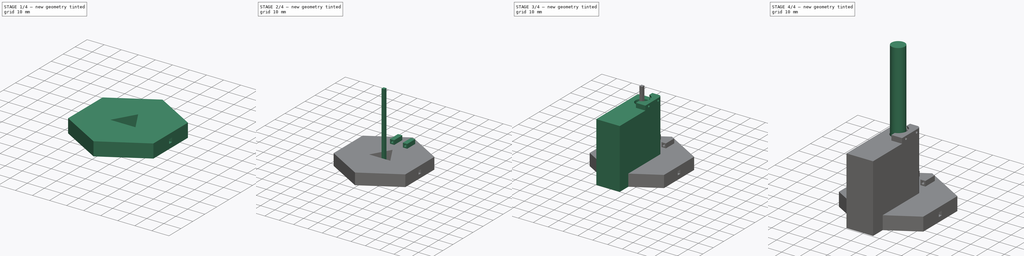
[diagram: build sequence overview — one tinted view per stage of 4, left to right]
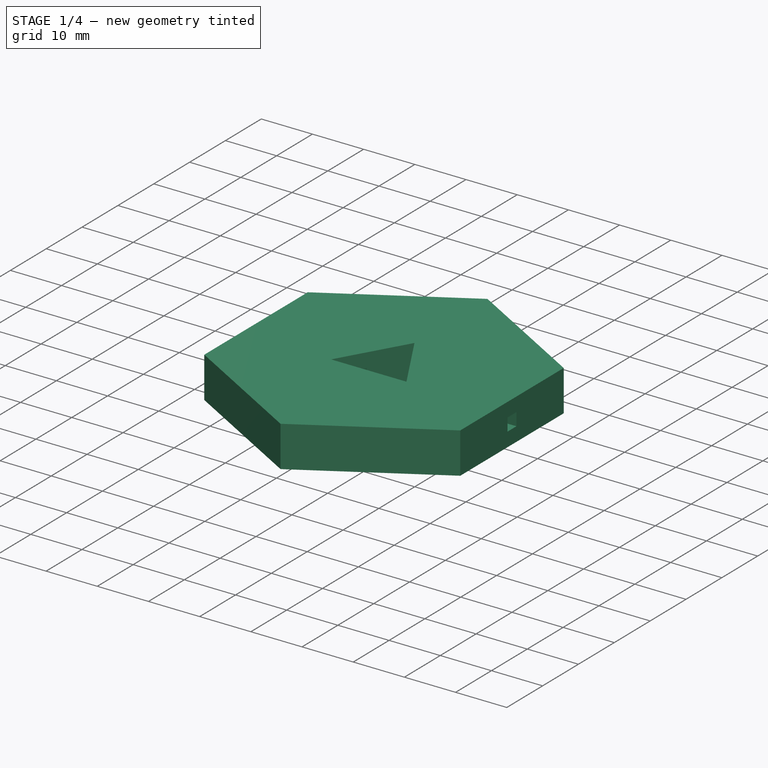
[diagram: stage 1 of 4 — iso view after this stage's code; geometry added in this stage tinted green]
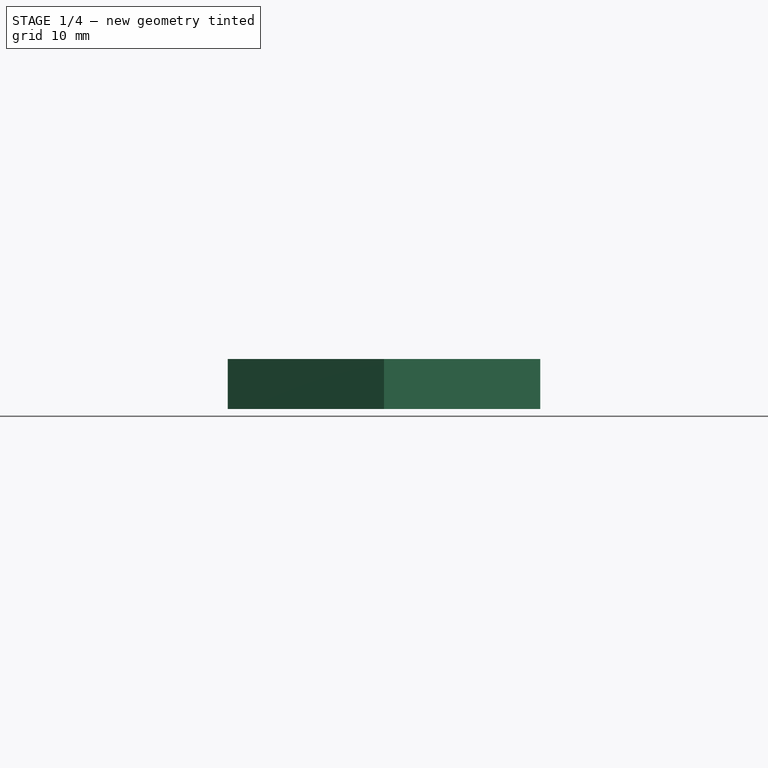
[diagram: stage 1 of 4 — front view after this stage's code; geometry added in this stage tinted green]
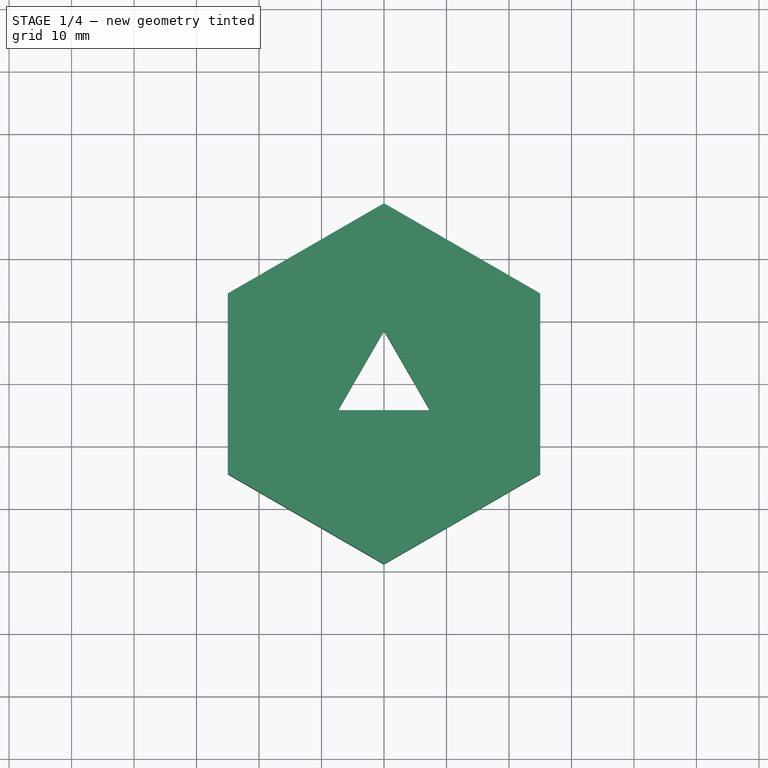
[diagram: stage 1 of 4 — top view after this stage's code; geometry added in this stage tinted green]
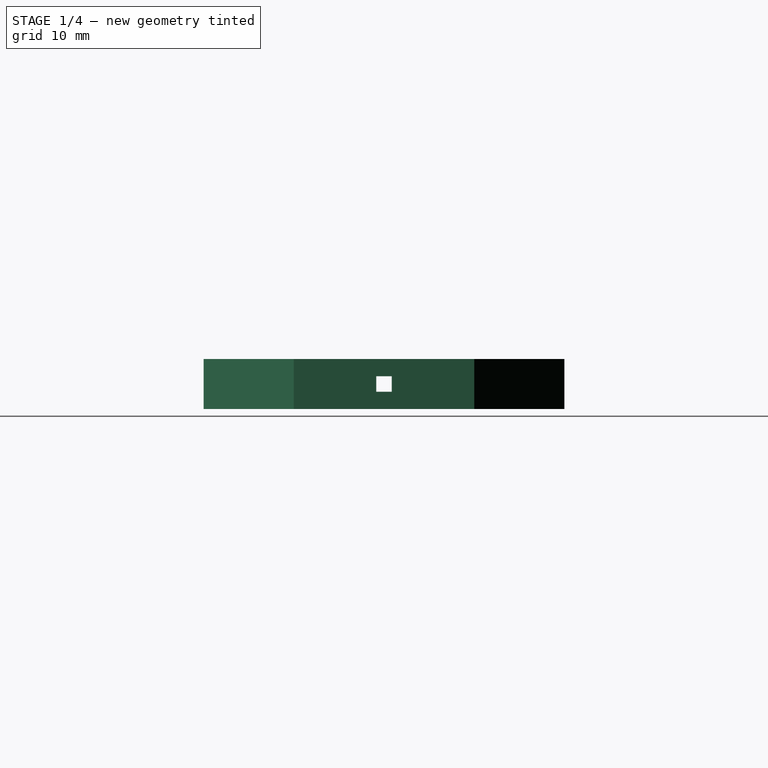
[diagram: stage 1 of 4 — right view after this stage's code; geometry added in this stage tinted green]
FCSTD DOCUMENT  (FreeCAD 0.21R33771 (Git))
Label: SpringWinder
License: All rights reserved
LicenseURL: https://en.wikipedia.org/wiki/All_rights_reserved
objects: PartDesign::CoordinateSystem×15, Sketcher::SketchObject×11, PartDesign::Pad×7, PartDesign::Plane×6, App::Part×5, PartDesign::Pocket×4, PartDesign::Body×4, App::Link×4, App::DocumentObjectGroup×3, Spreadsheet::Sheet×2, PartDesign::Mirrored×2, PartDesign::MultiTransform×2, App::FeaturePython×1
note: 62 computed .brp shape members not serialized (recipe doc carries the construction recipe); baked Part::Feature solids carry a one-line shape summary decoded from their .brp

FEATURE [PartDesign::Body] Body  label="axis_body"
  Group = -> [Sketch,Pad,Local_CS001,DatumPlane,Pocket,Sketch002,Local_CS,Sketch001,Pad001]
  Origin = -> Origin003
  Tip = -> Pad001
FEATURE [Sketcher::SketchObject] Sketch003  label="handle_cylinder_sketch"
  FullyConstrained = true
  MapMode = 5
  Support = -> [XY_Plane004]
  expr: Constraints[18] = <<Specification>>.handle_diameter
  sketch-geometry (7):
    g0: LineSegment StartX=25 StartY=-14.4338 StartZ=0 EndX=25 EndY=14.4338 EndZ=0
    g1: LineSegment StartX=25 StartY=14.4338 StartZ=0 EndX=0 EndY=28.8675 EndZ=0
    g2: LineSegment StartX=0 StartY=28.8675 StartZ=0 EndX=-25 EndY=14.4338 EndZ=0
    g3: LineSegment StartX=-25 StartY=14.4338 StartZ=0 EndX=-25 EndY=-14.4338 EndZ=0
    g4: LineSegment StartX=-25 StartY=-14.4338 StartZ=0 EndX=0 EndY=-28.8675 EndZ=0
    g5: LineSegment StartX=0 StartY=-28.8675 StartZ=0 EndX=25 EndY=-14.4338 EndZ=0
    g6: Circle CenterX=0 CenterY=0 CenterZ=0 NormalX=0 NormalY=0 NormalZ=1 AngleXU=0 Radius=28.8675
  constraints (15):
    c: Coincident(g0,g1)
    c: Coincident(g1,g2)
    c: Coincident(g2,g3)
    c: Coincident(g3,g4)
    c: Coincident(g4,g5)
    c: Coincident(g5,g0)
    c: Equal(g0, g1-g5) x5
    c: PointOnObject(g0,g6)
    c: PointOnObject(g1,g6)
    c: PointOnObject(g2,g6)
    c: PointOnObject(g3,g6)
    c: PointOnObject(g4,g6)
    c: Coincident(g6,g-1)
    c: Symmetric(g3,g0,g-2)
    c: DistanceX(g2,g0) = 50
FEATURE [PartDesign::Pad] Pad002  label="handle_cylinder_pad"
  Direction = (0,0,1)
  Length = 8
  Length2 = 10
  Profile = -> Sketch003
  ReferenceAxis = -> Sketch003 [N_Axis]
  Type = 0
  expr: Length = <<Specification>>.handle_width
FEATURE [PartDesign::CoordinateSystem] Local_CS002  label="handle_pin_hole_cs"
  AttacherType = Attacher::AttachEngine3D
  AttachmentOffset = pos=(25,0,4) rot=(0,0,1;0rad)
  MapMode = 2
  Placement = pos=(25,0,4) rot=(0,0,1;0rad)
  Support = -> [Pad002]
  expr: .AttachmentOffset.Base.x = <<Specification>>.handle_diameter * 0.5
  expr: .AttachmentOffset.Base.z = <<Specification>>.handle_width * 0.5
FEATURE [PartDesign::Plane] DatumPlane001  label="handle_pin_hole_plane"
  Length = 60
  MapMode = 4
  Placement = pos=(25,0,4) rot=(0.57735,0.57735,0.57735;2.0944rad)
  ResizeMode = 0
  Support = -> [Local_CS002]
  Width = 60
FEATURE [Sketcher::SketchObject] Sketch004  label="handle_pin_hole_sketch"
  FullyConstrained = true
  MapMode = 5
  Placement = pos=(25,0,4) rot=(0.57735,0.57735,0.57735;2.0944rad)
  Support = -> [DatumPlane001]
  expr: Constraints[11] = <<Specification>>.fixator_hole_diameter
  sketch-geometry (5):
    g0: LineSegment StartX=-1.25 StartY=-1.25 StartZ=0 EndX=-1.25 EndY=1.25 EndZ=0
    g1: LineSegment StartX=-1.25 StartY=1.25 StartZ=0 EndX=1.25 EndY=1.25 EndZ=0
    g2: LineSegment StartX=1.25 StartY=1.25 StartZ=0 EndX=1.25 EndY=-1.25 EndZ=0
    g3: LineSegment StartX=1.25 StartY=-1.25 StartZ=0 EndX=-1.25 EndY=-1.25 EndZ=0
    g4: GeomPoint X=0 Y=0 Z=0
  constraints (12):
    c: Coincident(g0,g1)
    c: Coincident(g1,g2)
    c: Coincident(g2,g3)
    c: Coincident(g3,g0)
    c: Horizontal(g1)
    c: Horizontal(g3)
    c: Vertical(g0)
    c: Vertical(g2)
    c: Symmetric(g1,g0,g4)
    c: Coincident(g4,g-1)
    c: Equal(g1,g2)
    c: DistanceY(g2,g1) = 2.5
FEATURE [PartDesign::Pocket] Pocket001  label="handle_pin_hole_pocket"
  BaseFeature = -> Pad002
  Direction = (-1,0,0)
  Length = 50
  Length2 = 5
  Profile = -> Sketch004
  ReferenceAxis = -> Sketch004 [N_Axis]
  Type = 1
  expr: Length = <<Specification>>.handle_diameter
FEATURE [PartDesign::Body] Body002  label="fixator_pin_body"
  Group = -> [Sketch005,Pad003]
  Origin = -> Origin006
  Tip = -> Pad003
FEATURE [PartDesign::CoordinateSystem] FlatAxisLCS
  AttacherType = Attacher::AttachEngine3D
  MapMode = 2
  Support = -> [Body]
FEATURE [App::Part] Part001  label="FlatAxis"
  Group = -> [Body,FlatAxisLCS]
  Origin = -> Origin001
FEATURE [PartDesign::CoordinateSystem] FixatorPinLCS
  AttacherType = Attacher::AttachEngine3D
  MapMode = 2
  Support = -> [Body002]
FEATURE [App::Part] Part003  label="FixatorPin"
  Group = -> [Body002,FixatorPinLCS]
  Origin = -> Origin005
FEATURE [PartDesign::CoordinateSystem] LCS_Origin
  AttacherType = Attacher::AttachEngine3D
  MapMode = 2
  Support = -> [X_Axis007]
FEATURE [App::DocumentObjectGroup] Constraints
FEATURE [App::FeaturePython] Variables  # WARN: FeaturePython — macro-defined, semantics opaque (R4)
  Type = App::PropertyContainer
FEATURE [App::DocumentObjectGroup] Configurations
FEATURE [App::Link] FlatAxis  label="FlatAxis001"
  AttachedBy = #FlatAxisLCS
  AttachedTo = Parent Assembly#LCS_Origin
  LinkedObject = -> Part001
  SolverId = Asm4EE
  expr: Placement = LCS_Origin.Placement * AttachmentOffset * FlatAxisLCS.Placement ^ -1
FEATURE [App::Link] Handle  label="Handle001"
  AttachedBy = #HandleLCS
  AttachedTo = Parent Assembly#LCS_Origin
  LinkedObject = -> Part
  SolverId = Asm4EE
  expr: Placement = LCS_Origin.Placement * AttachmentOffset * HandleLCS.Placement ^ -1
FEATURE [Sketcher::SketchObject] Sketch006  label="handle_axis_hole_sketch"
  FullyConstrained = true
  MapMode = 5
  Support = -> [XY_Plane004]
  expr: Constraints[9] = <<Specification>>.inner_radius + <<Parameters>>.big_clearence
  sketch-geometry (4):
    g0: LineSegment StartX=7.36122 StartY=-4.25 StartZ=0 EndX=-9e-16 EndY=8.5 EndZ=0
    g1: LineSegment StartX=-9e-16 StartY=8.5 StartZ=0 EndX=-7.36122 EndY=-4.25 EndZ=0
    g2: LineSegment StartX=-7.36122 StartY=-4.25 StartZ=0 EndX=7.36122 EndY=-4.25 EndZ=0
    g3: Circle CenterX=0 CenterY=0 CenterZ=0 NormalX=0 NormalY=0 NormalZ=1 AngleXU=0 Radius=8.5
  constraints (10):
    c: Coincident(g0,g1)
    c: Coincident(g1,g2)
    c: Coincident(g2,g0)
    c: Equal(g0,g1)
    c: Equal(g0,g2)
    c: PointOnObject(g0,g3)
    c: PointOnObject(g1,g3)
    c: Coincident(g3,g-1)
    c: Symmetric(g1,g0,g-2)
    c: DistanceY(g0,g3) = 4.25
FEATURE [PartDesign::Pocket] Pocket002  label="handle_axis_hole_pocket"
  BaseFeature = -> Pocket001
  Direction = (0,0,-1)
  Length = 5
  Length2 = 5
  Profile = -> Sketch006
  ReferenceAxis = -> Sketch006 [N_Axis]
  Reversed = true
  Type = 1
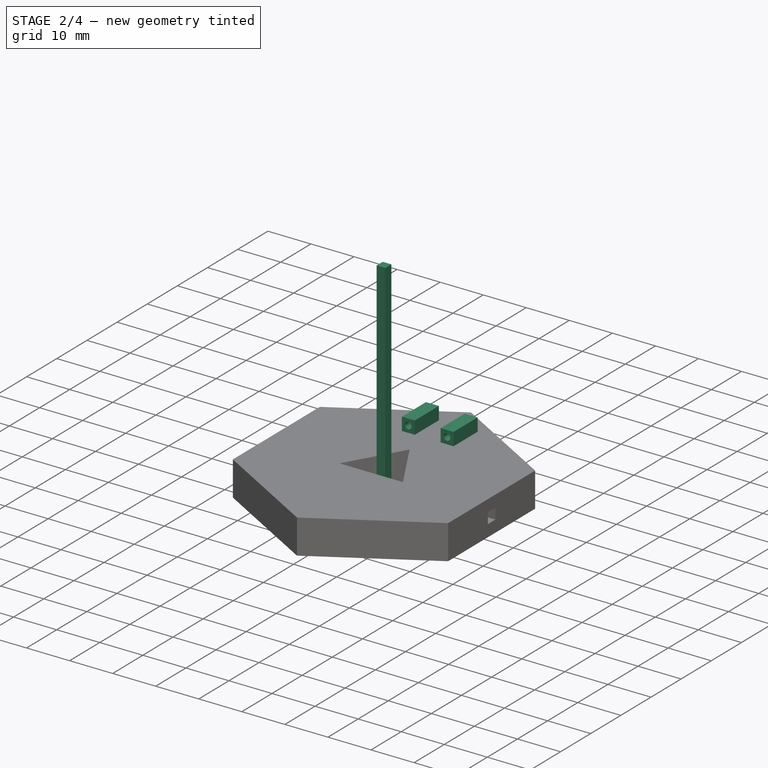
[diagram: stage 2 of 4 — iso view after this stage's code; geometry added in this stage tinted green]
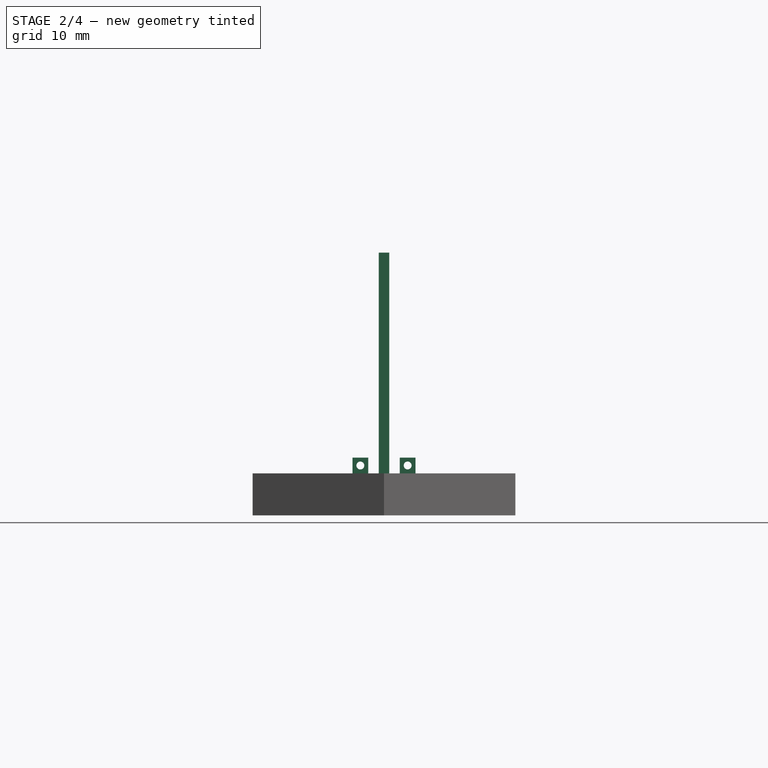
[diagram: stage 2 of 4 — front view after this stage's code; geometry added in this stage tinted green]
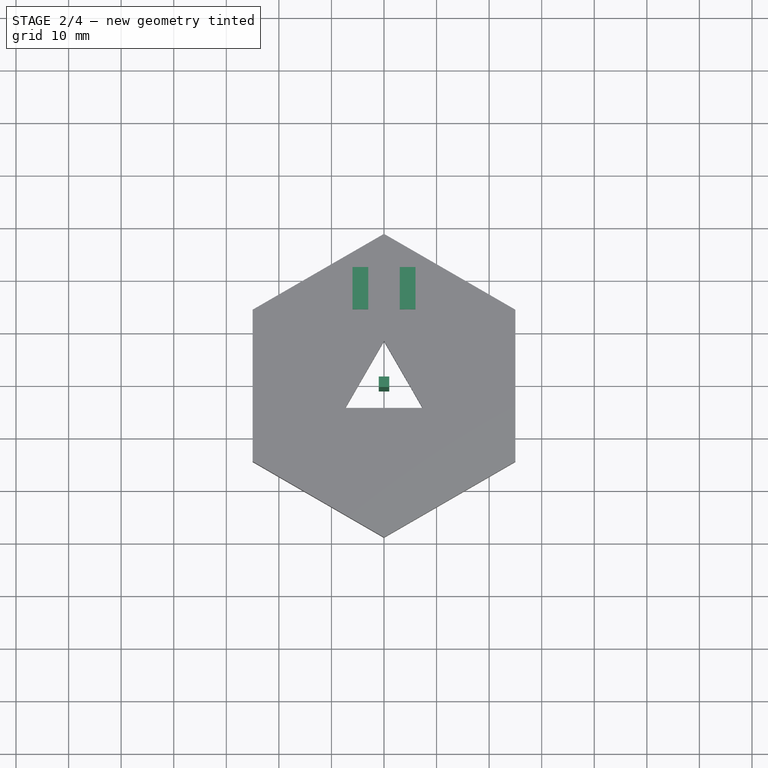
[diagram: stage 2 of 4 — top view after this stage's code; geometry added in this stage tinted green]
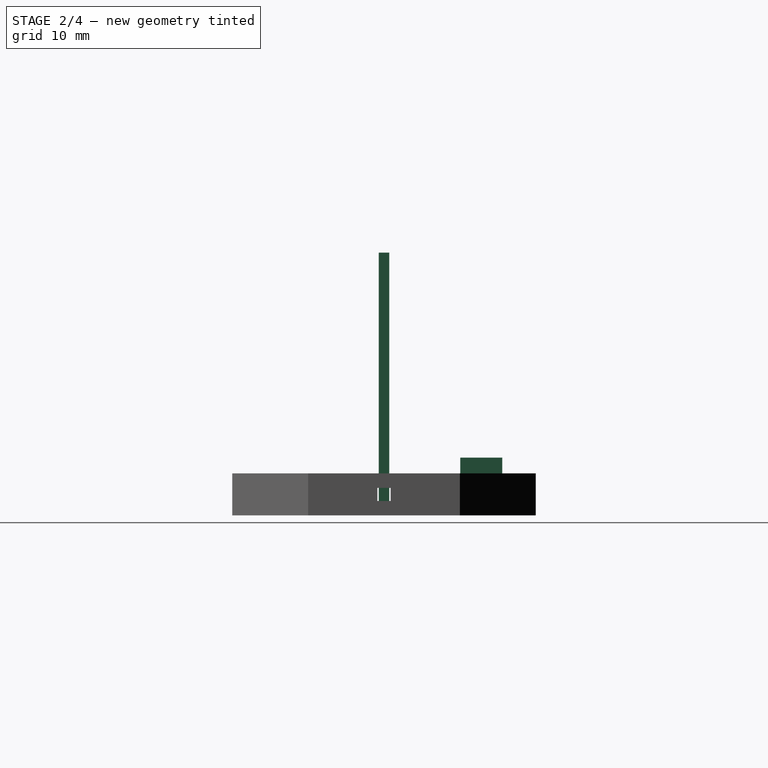
[diagram: stage 2 of 4 — right view after this stage's code; geometry added in this stage tinted green]
FEATURE [Sketcher::SketchObject] Sketch005  label="fixator_pin_sketch"
  FullyConstrained = true
  MapMode = 5
  Support = -> [XY_Plane006]
  expr: Constraints[10] = <<Specification>>.fixator_pin_diameter
  sketch-geometry (5):
    g0: LineSegment StartX=-1 StartY=1 StartZ=0 EndX=-1 EndY=-1 EndZ=0
    g1: LineSegment StartX=-1 StartY=-1 StartZ=0 EndX=1 EndY=-1 EndZ=0
    g2: LineSegment StartX=1 StartY=-1 StartZ=0 EndX=1 EndY=1 EndZ=0
    g3: LineSegment StartX=1 StartY=1 StartZ=0 EndX=-1 EndY=1 EndZ=0
    g4: GeomPoint X=0 Y=0 Z=0
  constraints (12):
    c: Coincident(g0,g1)
    c: Coincident(g1,g2)
    c: Coincident(g2,g3)
    c: Coincident(g3,g0)
    c: Horizontal(g1)
    c: Horizontal(g3)
    c: Vertical(g0)
    c: Vertical(g2)
    c: Symmetric(g1,g0,g4)
    c: Equal(g3,g2)
    c: DistanceY(g1,g2) = 2
    c: Coincident(g4,g-1)
FEATURE [PartDesign::Pad] Pad003  label="fixator_pin_pad"
  Direction = (0,0,1)
  Length = 50
  Length2 = 10
  Profile = -> Sketch005
  ReferenceAxis = -> Sketch005 [N_Axis]
  Type = 0
  expr: Length = <<Specification>>.handle_diameter
FEATURE [PartDesign::CoordinateSystem] Local_CS003  label="handle_wire_holder_center_cs"
  AttacherType = Attacher::AttachEngine3D
  AttachmentOffset = pos=(0,14.5,8) rot=(0,0,1;0rad)
  MapMode = 2
  Placement = pos=(0,14.5,8) rot=(0,0,1;0rad)
  Support = -> [Pocket002]
  expr: .AttachmentOffset.Base.y = <<Specification>>.handle_wire_holder_y_offset
  expr: .AttachmentOffset.Base.z = <<Specification>>.handle_width
FEATURE [PartDesign::Plane] DatumPlane002  label="handle_wire_holder_mirror_plane"
  Length = 60
  MapMode = 4
  Placement = pos=(0,14.5,8) rot=(0.57735,0.57735,0.57735;2.0944rad)
  ResizeMode = 0
  Support = -> [Local_CS003]
  Width = 60
FEATURE [PartDesign::CoordinateSystem] Local_CS004  label="handle_wire_holder_cs"
  AttacherType = Attacher::AttachEngine3D
  AttachmentOffset = pos=(0,1.5,4.5) rot=(0,0,1;0rad)
  MapMode = 5
  Placement = pos=(4.5,14.5,9.5) rot=(0.57735,0.57735,0.57735;2.0944rad)
  Support = -> [DatumPlane002]
  expr: .AttachmentOffset.Base.y = <<Specification>>.handle_wire_holder_width * 0.5
  expr: .AttachmentOffset.Base.z = <<Specification>>.handle_wire_holder_x_offset
FEATURE [PartDesign::Plane] DatumPlane003  label="handle_wire_holder_plane"
  Length = 60
  MapMode = 4
  Placement = pos=(4.5,14.5,9.5) rot=(0.57735,0.57735,0.57735;4.18879rad)
  ResizeMode = 0
  Support = -> [Local_CS004]
  Width = 60
FEATURE [Sketcher::SketchObject] Sketch007  label="handle_wire_holder_sketch"
  FullyConstrained = true
  MapMode = 5
  Placement = pos=(4.5,14.5,9.5) rot=(0.57735,0.57735,0.57735;4.18879rad)
  Support = -> [DatumPlane003]
  expr: Constraints[10] = <<Specification>>.handle_wire_holder_width
  expr: Constraints[12] = <<Specification>>.handle_wire_holder_hole_diameter
  sketch-geometry (6):
    g0: LineSegment StartX=-1.5 StartY=-1.5 StartZ=0 EndX=-1.5 EndY=1.5 EndZ=0
    g1: LineSegment StartX=-1.5 StartY=1.5 StartZ=0 EndX=1.5 EndY=1.5 EndZ=0
    g2: LineSegment StartX=1.5 StartY=1.5 StartZ=0 EndX=1.5 EndY=-1.5 EndZ=0
    g3: LineSegment StartX=1.5 StartY=-1.5 StartZ=0 EndX=-1.5 EndY=-1.5 EndZ=0
    g4: GeomPoint X=0 Y=0 Z=0
    g5: Circle CenterX=0 CenterY=0 CenterZ=0 NormalX=0 NormalY=0 NormalZ=1 AngleXU=0 Radius=0.75
  constraints (14):
    c: Coincident(g0,g1)
    c: Coincident(g1,g2)
    c: Coincident(g2,g3)
    c: Coincident(g3,g0)
    c: Horizontal(g1)
    c: Horizontal(g3)
    c: Vertical(g0)
    c: Vertical(g2)
    c: Symmetric(g1,g0,g4)
    c: Coincident(g4,g-1)
    c: DistanceY(g2,g1) = 3
    c: Coincident(g5,g4)
    c: Diameter(g5) = 1.5
    c: Equal(g1,g2)
FEATURE [PartDesign::Pad] Pad004  label="handle_wire_holder_pad"
  BaseFeature = -> Pocket002
  Direction = (0,1,0)
  Length = 8
  Length2 = 10
  Profile = -> Sketch007
  ReferenceAxis = -> Sketch007 [N_Axis]
  Type = 0
  expr: Length = <<Specification>>.handle_wire_holder_length
FEATURE [PartDesign::Mirrored] Mirrored
  MirrorPlane = -> DatumPlane002
FEATURE [PartDesign::MultiTransform] MultiTransform  label="handle_wire_holder_mirror"
  BaseFeature = -> Pad004
  Originals = -> [Pad004]
  Transformations = -> [Mirrored]
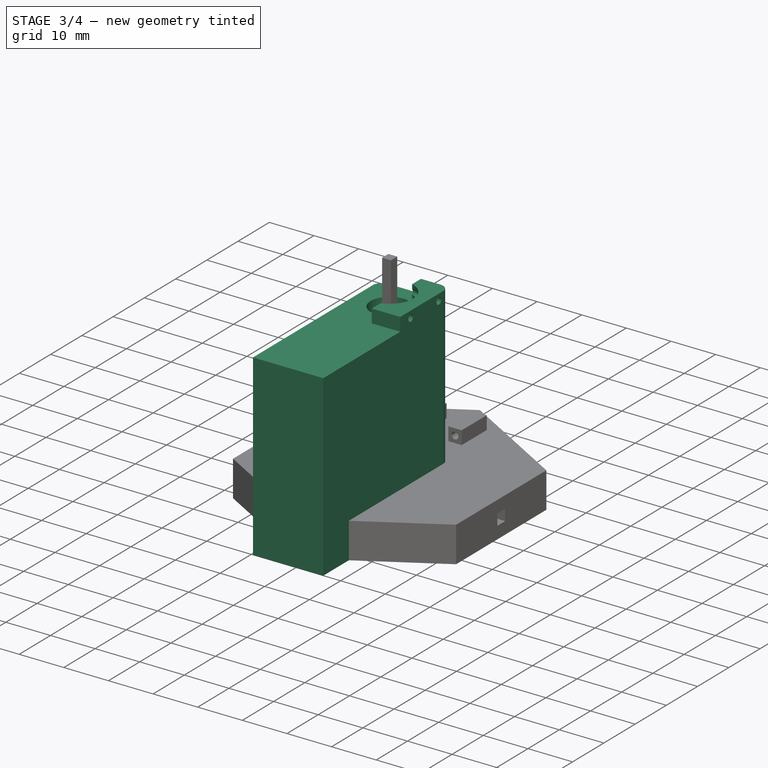
[diagram: stage 3 of 4 — iso view after this stage's code; geometry added in this stage tinted green]
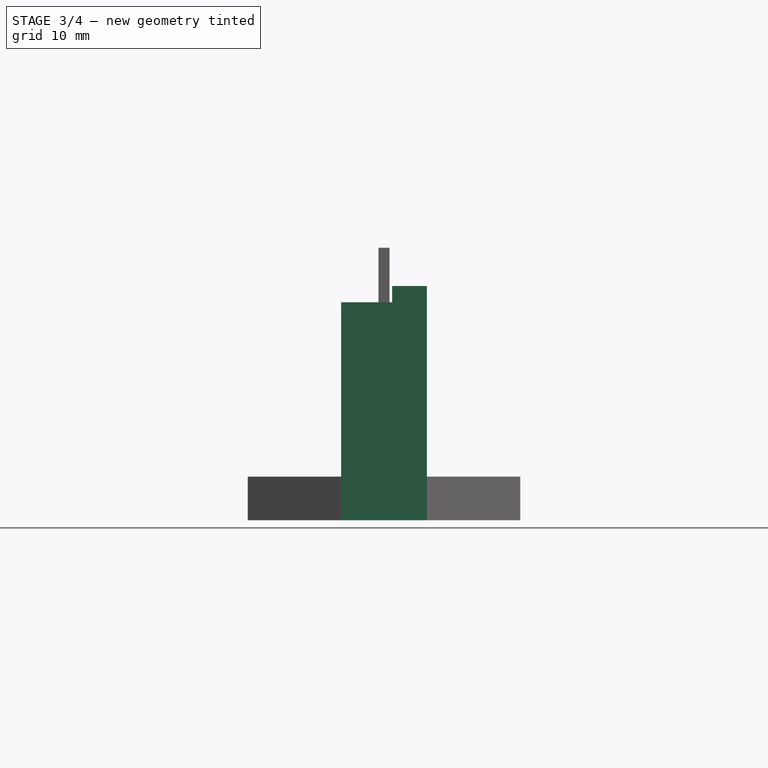
[diagram: stage 3 of 4 — front view after this stage's code; geometry added in this stage tinted green]
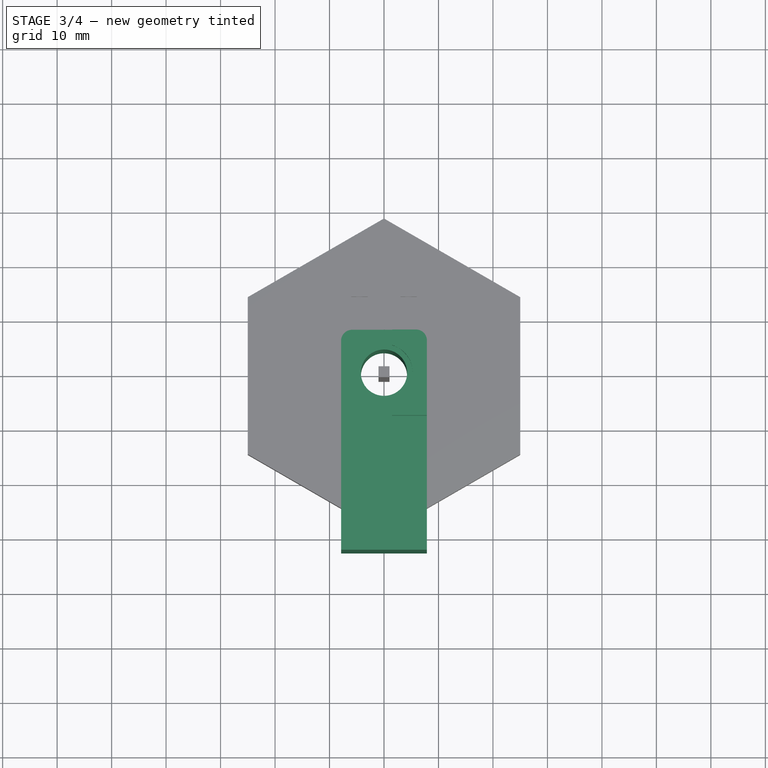
[diagram: stage 3 of 4 — top view after this stage's code; geometry added in this stage tinted green]
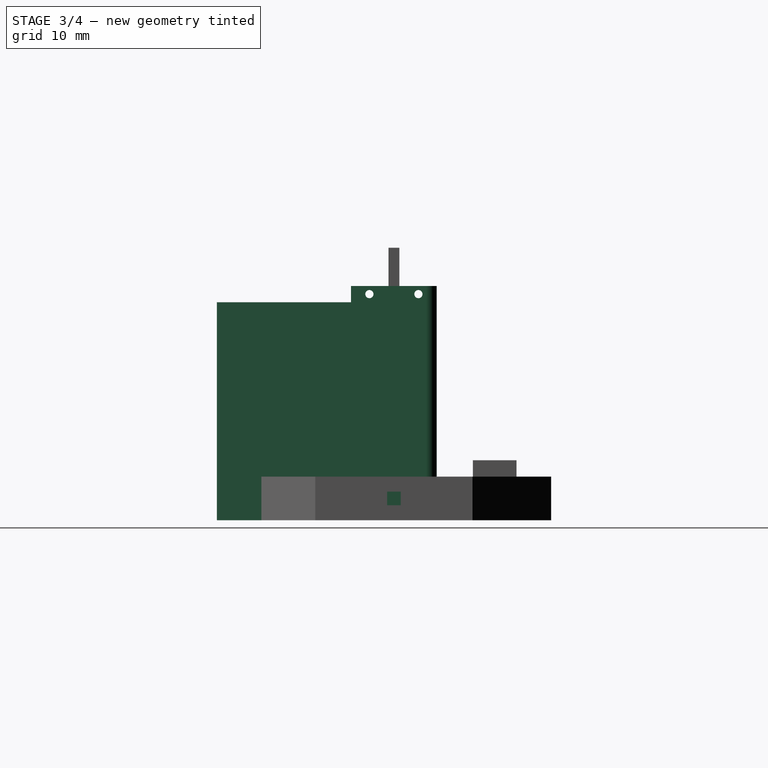
[diagram: stage 3 of 4 — right view after this stage's code; geometry added in this stage tinted green]
FEATURE [PartDesign::Body] Body001  label="handle_body"
  Group = -> [Sketch003,Pad002,Local_CS002,DatumPlane001,Sketch004,Pocket001,Sketch006,Pocket002,Local_CS003,DatumPlane002,Local_CS004,DatumPlane003,Sketch007,Pad004,MultiTransform,Mirrored]
  Origin = -> Origin004
  Tip = -> MultiTransform
FEATURE [PartDesign::CoordinateSystem] HandleLCS
  AttacherType = Attacher::AttachEngine3D
  MapMode = 2
  Support = -> [Body001]
FEATURE [Sketcher::SketchObject] Sketch008  label="flat_stator_tube_sketch"
  FullyConstrained = true
  MapMode = 5
  Support = -> [XY_Plane008]
  expr: Constraints[0] = <<Specification>>.stator_hole_diameter
  expr: Constraints[19] = <<Specification>>.stator_outside_diameter
  expr: Constraints[20] = <<Specification>>.stator_outside_diameter * 0.5
  expr: Constraints[21] = <<Specification>>.stator_corner_radius
  expr: Constraints[8] = <<Specification>>.stator_height
  sketch-geometry (10):
    g0: Circle CenterX=0 CenterY=0 CenterZ=0 NormalX=0 NormalY=0 NormalZ=1 AngleXU=0 Radius=4.25
    g1: LineSegment StartX=7.875 StartY=0 StartZ=0 EndX=7.875 EndY=-32.5 EndZ=0
    g2: LineSegment StartX=7.875 StartY=-32.5 StartZ=0 EndX=-7.875 EndY=-32.5 EndZ=0
    g3: LineSegment StartX=-7.875 StartY=-32.5 StartZ=0 EndX=-7.875 EndY=0 EndZ=0
    g4: ArcOfCircle CenterX=-5.875 CenterY=5.875 CenterZ=0 NormalX=0 NormalY=0 NormalZ=1 AngleXU=0 Radius=2 StartAngle=1.5708 EndAngle=3.14159
    g5: LineSegment StartX=-5.875 StartY=7.875 StartZ=0 EndX=5.875 EndY=7.875 EndZ=0
    g6: ArcOfCircle CenterX=5.875 CenterY=5.875 CenterZ=0 NormalX=0 NormalY=0 NormalZ=1 AngleXU=0 Radius=2 StartAngle=0 EndAngle=1.5708
    g7: LineSegment StartX=7.875 StartY=5.875 StartZ=0 EndX=7.875 EndY=0 EndZ=0
    g8: LineSegment StartX=-7.875 StartY=0 StartZ=0 EndX=-7.875 EndY=5.875 EndZ=0
    g9: GeomPoint X=-7.875 Y=7.875 Z=0
  constraints (25):
    c: Diameter(g0) = 8.5
    c: Coincident(g0,g-1)
    c: PointOnObject(g1,g-1)
    c: Coincident(g1,g2)
    c: Coincident(g2,g3)
    c: Horizontal(g2)
    c: Vertical(g1)
    c: Vertical(g3)
    c: DistanceY(g1,g0) = 32.5
    c: Tangent(g4,g5) = 1.5708
    c: Tangent(g5,g6) = 1.5708
    c: Tangent(g6,g7) = 1.5708
    c: Tangent(g8,g4) = 1.5708
    c: Horizontal(g5)
    c: Vertical(g7)
    c: Vertical(g8)
    c: Equal(g4,g6)
    c: PointOnObject(g9,g5)
    c: PointOnObject(g9,g8)
    c: DistanceX(g4,g6) = 15.75
    c: DistanceY(g8,g4) = 7.875
    c: Radius(g6) = 2
    c: Coincident(g8,g3)
    c: Coincident(g7,g1)
    c: Symmetric(g3,g1,g0)
FEATURE [PartDesign::Pad] Pad005  label="flat_stator_tube_pad"
  Direction = (0,0,1)
  Length = 40
  Length2 = 10
  Profile = -> Sketch008
  ReferenceAxis = -> Sketch008 [N_Axis]
  Type = 0
  expr: Length = <<Specification>>.stator_length
FEATURE [PartDesign::CoordinateSystem] Local_CS005  label="flat_stator_wire_holder_shield_cs"
  AttacherType = Attacher::AttachEngine3D
  AttachmentOffset = pos=(0,0,40) rot=(0,0,1;0rad)
  MapMode = 2
  Placement = pos=(0,0,40) rot=(0,0,1;0rad)
  Support = -> [Pad005]
  expr: .AttachmentOffset.Base.z = <<Specification>>.stator_length
FEATURE [Sketcher::SketchObject] Sketch009  label="flat_stator_wire_holder_shield_sketch"
  FullyConstrained = true
  MapMode = 5
  Placement = pos=(0,0,40) rot=(0,0,1;0rad)
  Support = -> [Local_CS005]
  expr: Constraints[15] = <<Specification>>.stator_wire_holder_hole_diameter
  expr: Constraints[18] = <<Specification>>.stator_outside_diameter
  expr: Constraints[19] = <<Specification>>.stator_outside_diameter * 0.5
  expr: Constraints[20] = <<Specification>>.stator_corner_radius
  expr: Constraints[2] = <<Specification>>.stator_wire_holder_inside_diameter
  sketch-geometry (8):
    g0: ArcOfCircle CenterX=0 CenterY=0 CenterZ=0 NormalX=0 NormalY=0 NormalZ=1 AngleXU=0 Radius=5.25 StartAngle=5.00214 EndAngle=7.56423
    g1: LineSegment StartX=1.5 StartY=5.03115 StartZ=0 EndX=1.5 EndY=7.875 EndZ=0
    g2: LineSegment StartX=1.5 StartY=-5.03115 StartZ=0 EndX=1.5 EndY=-7.875 EndZ=0
    g3: GeomPoint X=5.25 Y=0 Z=0
    g4: LineSegment StartX=1.5 StartY=7.875 StartZ=0 EndX=5.875 EndY=7.875 EndZ=0
    g5: LineSegment StartX=7.875 StartY=5.875 StartZ=0 EndX=7.875 EndY=-7.875 EndZ=0
    g6: LineSegment StartX=7.875 StartY=-7.875 StartZ=0 EndX=1.5 EndY=-7.875 EndZ=0
    g7: ArcOfCircle CenterX=5.875 CenterY=5.875 CenterZ=0 NormalX=0 NormalY=0 NormalZ=1 AngleXU=0 Radius=2 StartAngle=0 EndAngle=1.5708
  constraints (21):
    c: Coincident(g1,g0)
    c: Coincident(g2,g0)
    c: Diameter(g0) = 10.5
    c: PointOnObject(g3,g0)
    c: PointOnObject(g3,g-1)
    c: Vertical(g2)
    c: Vertical(g1)
    c: Horizontal(g4)
    c: Horizontal(g6)
    c: Vertical(g5)
    c: Coincident(g6,g5)
    c: Coincident(g6,g2)
    c: Coincident(g4,g1)
    c: Coincident(g0,g-1)
    c: Symmetric(g1,g2,g-1)
    c: DistanceX(g0,g0) = 1.5
    c: Tangent(g4,g7) = 1.5708
    c: Tangent(g5,g7) = 1.5708
    c: DistanceY(g5,g4) = 15.75
    c: DistanceX(g0,g5) = 7.875
    c: Radius(g7) = 2
FEATURE [PartDesign::Pad] Pad006  label="flat_stator_wire_holder_shield_pad"
  BaseFeature = -> Pad005
  Direction = (0,0,1)
  Length = 3
  Length2 = 10
  Profile = -> Sketch009
  ReferenceAxis = -> Sketch009 [N_Axis]
  Type = 0
  expr: Length = <<Specification>>.stator_wire_holder_pin_width
FEATURE [PartDesign::CoordinateSystem] Local_CS006  label="flat_stator_wire_holder_pins_center_cs"
  AttacherType = Attacher::AttachEngine3D
  AttachmentOffset = pos=(0,0,1.5) rot=(0,0,1;0rad)
  MapMode = 2
  Placement = pos=(0,0,41.5) rot=(0,0,1;0rad)
  Support = -> [Local_CS005]
  expr: .AttachmentOffset.Base.z = <<Specification>>.stator_wire_holder_pin_width * 0.5
FEATURE [PartDesign::Plane] DatumPlane004  label="flat_stator_wire_holder_pins_mirror_plane"
  Length = 61.5326
  MapMode = 3
  Placement = pos=(0,0,41.5) rot=(1,0,0;1.5708rad)
  ResizeMode = 0
  Support = -> [Local_CS006]
  Width = 78.0326
FEATURE [PartDesign::CoordinateSystem] Local_CS007  label="flat_stator_wire_holder_pins_pos_cs"
  AttacherType = Attacher::AttachEngine3D
  AttachmentOffset = pos=(0,0,4.5) rot=(0,0,1;0rad)
  MapMode = 5
  Placement = pos=(0,-4.5,41.5) rot=(1,0,0;1.5708rad)
  Support = -> [DatumPlane004]
  expr: .AttachmentOffset.Base.z = <<Specification>>.stator_wire_holder_holes_distance * 0.5
FEATURE [PartDesign::Plane] DatumPlane005  label="flat_stator_wire_holder_pins_pos_plane"
  Length = 78.0326
  MapMode = 4
  Placement = pos=(0,-4.5,41.5) rot=(0.707107,0,0.707107;3.14159rad)
  ResizeMode = 0
  Support = -> [Local_CS007]
  Width = 61.5326
FEATURE [Sketcher::SketchObject] Sketch010  label="flat_stator_wire_holder_pins_hole_sketch"
  FullyConstrained = true
  MapMode = 5
  Placement = pos=(0,-4.5,41.5) rot=(0.707107,0,0.707107;3.14159rad)
  Support = -> [DatumPlane005]
  expr: Constraints[1] = <<Specification>>.handle_wire_holder_hole_diameter
  sketch-geometry (1):
    g0: Circle CenterX=0 CenterY=0 CenterZ=0 NormalX=0 NormalY=0 NormalZ=1 AngleXU=0 Radius=0.75
  constraints (2):
    c: Coincident(g0,g-1)
    c: Diameter(g0) = 1.5
FEATURE [PartDesign::Pocket] Pocket003  label="flat_stator_wire_holder_pins_hole_pocket"
  BaseFeature = -> Pad006
  Direction = (-1,0,2e-16)
  Length = 5
  Length2 = 5
  Profile = -> Sketch010
  ReferenceAxis = -> Sketch010 [N_Axis]
  Reversed = true
  Type = 1
FEATURE [PartDesign::Mirrored] Mirrored001
  MirrorPlane = -> DatumPlane004
FEATURE [PartDesign::MultiTransform] MultiTransform001  label="flat_stator_wire_holder_pins_mirror"
  BaseFeature = -> Pocket003
  Originals = -> [Pocket003]
  Transformations = -> [Mirrored001]
FEATURE [PartDesign::Body] Body003  label="flat_stator_body"
  Group = -> [Sketch008,Pad005,Local_CS005,Sketch009,Pad006,Local_CS006,DatumPlane004,Local_CS007,DatumPlane005,Sketch010,Pocket003,MultiTransform001,Mirrored001]
  Origin = -> Origin008
  Tip = -> MultiTransform001
FEATURE [PartDesign::CoordinateSystem] FlatStatorLCS
  AttacherType = Attacher::AttachEngine3D
  AttachmentOffset = pos=(0,0,43) rot=(0,0,1;0rad)
  MapMode = 2
  Placement = pos=(0,0,43) rot=(0,0,1;0rad)
  Support = -> [Body003]
  expr: .AttachmentOffset.Base.z = <<Specification>>.stator_length + <<Specification>>.stator_wire_holder_pin_width
FEATURE [App::Part] Part002  label="FlatStator"
  Group = -> [Body003,FlatStatorLCS]
  Origin = -> Origin002
FEATURE [PartDesign::CoordinateSystem] FlatAssemblyStatorLCS
  AttacherType = Attacher::AttachEngine3D
  AttachmentOffset = pos=(0,0,8) rot=(0.707107,-0.707107,0;3.14159rad)
  MapMode = 2
  Placement = pos=(0,0,8) rot=(0.707107,-0.707107,0;3.14159rad)
  Support = -> [LCS_Origin]
  expr: .AttachmentOffset.Base.z = <<Specification>>.handle_width
FEATURE [App::Link] FlatStator  label="FlatStator001"
  AttachedBy = #FlatStatorLCS
  AttachedTo = Parent Assembly#FlatAssemblyStatorLCS
  LinkPlacement = pos=(3.7e-15,3.7e-15,51) rot=(0.707107,-0.707107,0;3.14159rad)
  LinkedObject = -> Part002
  Placement = pos=(3.7e-15,3.7e-15,51) rot=(0.707107,-0.707107,0;3.14159rad)
  SolverId = Asm4EE
  expr: Placement = FlatAssemblyStatorLCS.Placement * AttachmentOffset * FlatStatorLCS.Placement ^ -1
FEATURE [PartDesign::CoordinateSystem] HandleHoleLCS
  AttacherType = Attacher::AttachEngine3D
  AttachmentOffset = pos=(25,0,4) rot=(0,-1,0;1.5708rad)
  MapMode = 2
  Placement = pos=(25,0,4) rot=(0,-1,0;1.5708rad)
  Support = -> [HandleLCS]
  expr: .AttachmentOffset.Base.x = <<Specification>>.handle_diameter * 0.5
  expr: .AttachmentOffset.Base.z = <<Specification>>.handle_width * 0.5
FEATURE [App::Part] Part  label="Handle"
  Group = -> [Body001,HandleLCS,HandleHoleLCS]
  Origin = -> Origin
FEATURE [App::DocumentObjectGroup] Parts
  Group = -> [Part,Part001,Part002,Part003]
FEATURE [App::Link] FixatorPin  label="FixatorPin001"
  AttachedBy = #FixatorPinLCS
  AttachedTo = Handle#HandleHoleLCS
  LinkPlacement = pos=(25,0,4) rot=(0,-1,0;1.5708rad)
  LinkedObject = -> Part003
  Placement = pos=(25,0,4) rot=(0,-1,0;1.5708rad)
  SolverId = Asm4EE
  expr: Placement = Handle.Placement * HandleHoleLCS.Placement * AttachmentOffset * FixatorPinLCS.Placement ^ -1
FEATURE [App::Part] Assembly  label="FlatAssemly"
  AssemblyType = Part::Link
  Group = -> [LCS_Origin,Constraints,Variables,Configurations,FlatAxis,Handle,FlatAssemblyStatorLCS,FlatStator,FixatorPin]
  Origin = -> Origin007
  Type = Assembly
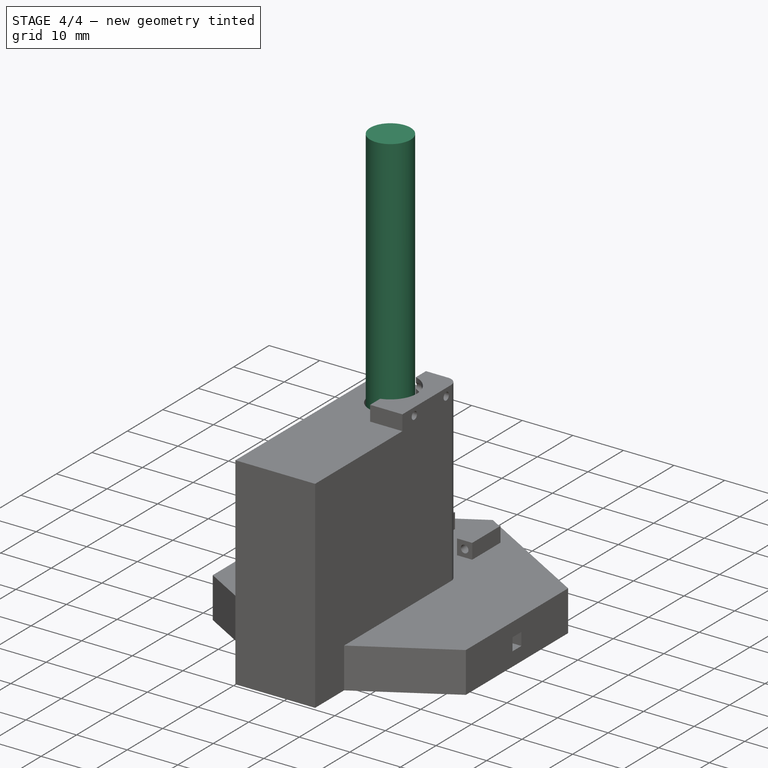
[diagram: stage 4 of 4 — iso view after this stage's code; geometry added in this stage tinted green]
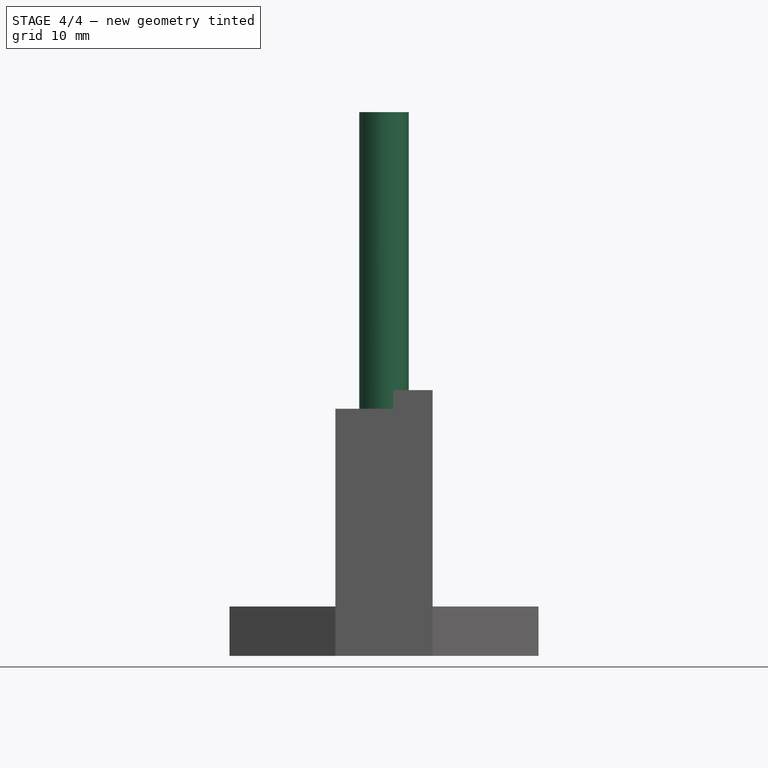
[diagram: stage 4 of 4 — front view after this stage's code; geometry added in this stage tinted green]
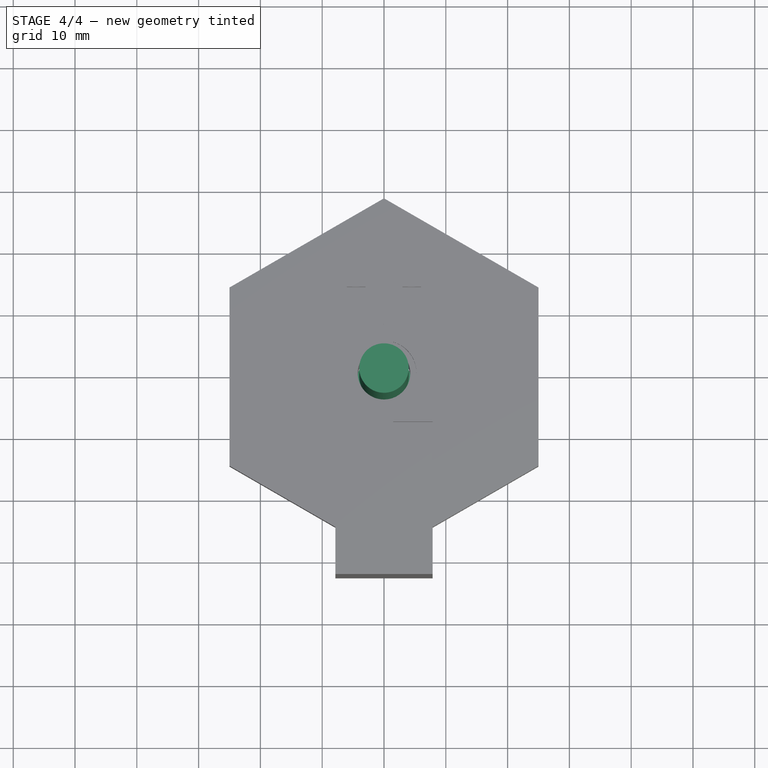
[diagram: stage 4 of 4 — top view after this stage's code; geometry added in this stage tinted green]
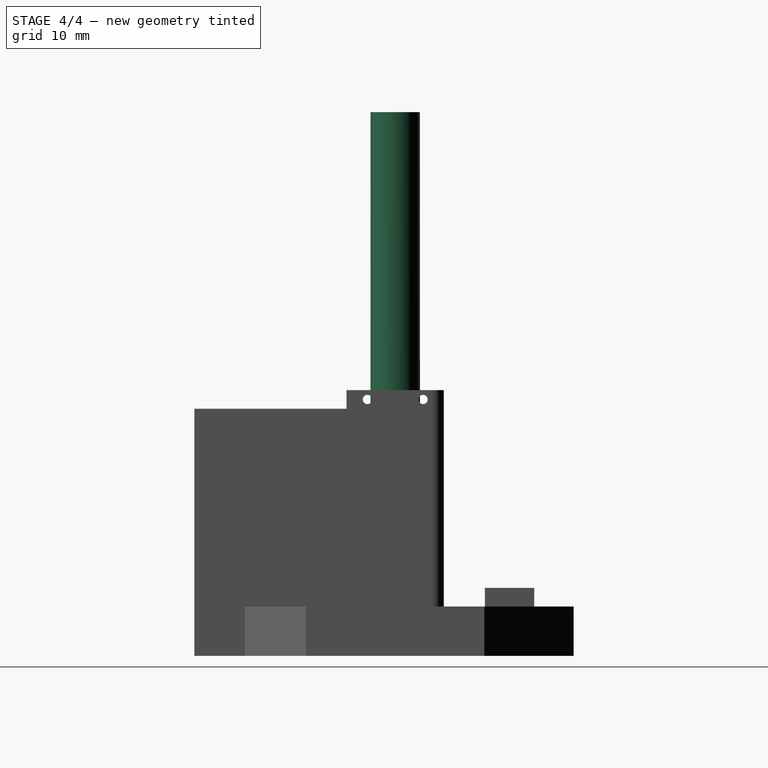
[diagram: stage 4 of 4 — right view after this stage's code; geometry added in this stage tinted green]
FEATURE [Spreadsheet::Sheet] Spreadsheet  label="Parameters"
  cells = A1='Core parameters; A2='Name; B2='Value; C2='Description; A3='wire_diameter; B3(wire_diameter)=1; C3='Diameter of the wire used; A4='outside_diameter; B4(outside_diameter)=10; C4='Outside diameter of the spring; A5='pitch; B5(pitch)=1; C5='Distance between adjacent coils; A6='max_free_length; B6(max_free_length)=40; C6='Length of the spring with no applied force on it; A7='clearence; B7(clearence)=0.5; C7='Gaps between details and internal connections; A8='handle_diameter; B8(handle_diameter)=50; C8='Diameter of a handle used to hand-wind spring; A9='big_clearence; B9(big_clearence)=0.25; C9='Clearence for joining big parts. Could smaller than regular clearance
FEATURE [Spreadsheet::Sheet] Spreadsheet001  label="Specification"
  cells = A1='Name; B1='Value; A2='inner_diameter; B2(inner_diameter)==<<Parameters>>.outside_diameter - 2 * <<Parameters>>.wire_diameter; A3='handle_width; B3(handle_width)==inner_diameter; A4='axis_length; B4(axis_length)==<<Parameters>>.max_free_length + stator_length; A5='inner_radius; B5(inner_radius)==inner_diameter * 0.5; A6='fixator_pin_diameter; B6(fixator_pin_diameter)==inner_diameter * 0.25; A7='handle_pin_z_offset; B7(handle_pin_z_offset)==handle_width * 0.5; A8='fixator_hole_diameter; B8(fixator_hole_diameter)==fixator_pin_diameter + <<Parameters>>.clearence; A9='fixator_hole_length; B9(fixator_hole_length)==inner_diameter * 1.5; A10='handle_diameter; B10(handle_diameter)==<<Parameters>>.handle_diameter; A11='handle_wire_holder_y_offset; B11(handle_wire_holder_y_offset)==handle_diameter * 0.45 - handle_wire_holder_length; A12='handle_wire_holder_x_offset; B12(handle_wire_holder_x_offset)==inner_radius + <<Parameters>>.wire_diameter * 0.5; A13='handle_wire_holder_length; B13(handle_wire_holder_length)==inner_diameter; A14='handle_wire_holder_hole_diameter; B14(handle_wire_holder_hole_diameter)==<<Parameters>>.wire_diameter + <<Parameters>>.clearence; A15='handle_wire_holder_width; B15(handle_wire_holder_width)==handle_wire_holder_hole_diameter * 2; A16='stator_hole_diameter; B16(stator_hole_diameter)==inner_diameter + <<Parameters>>.clearence; A17='stator_wire_holder_inside_diameter; B17(stator_wire_holder_inside_diameter)==<<Parameters>>.outside_diameter + <<Parameters>>.clearence; A18='stator_outside_diameter; B18(stator_outside_diameter)==stator_wire_holder_inside_diameter * 1.5; A19='stator_length; B19(stator_length)==inner_diameter * 5; A20='stator_height; B20(stator_height)==handle_diameter * 0.65; A21='stator_wire_holder_hole_diameter; B21(stator_wire_holder_hole_diameter)==<<Parameters>>.wire_diameter + <<Parameters>>.clearence; A22='stator_wire_holder_pin_width; B22(stator_wire_holder_pin_width)==stator_wire_holder_hole_diameter * 2; A23='stator_wire_holder_pin_length; B23(stator_wire_holder_pin_length)==(stator_outside_diameter - stator_hole_diameter) * 0.5; A24='stator_wire_holder_holes_distance; B24(stator_wire_holder_holes_distance)==inner_diameter + <<Parameters>>.wire_diameter; A25='stator_corner_radius; B25(stator_corner_radius)=2
FEATURE [Sketcher::SketchObject] Sketch  label="prism_sketch"
  FullyConstrained = true
  MapMode = 5
  Support = -> [XY_Plane003]
  expr: Constraints[10] = <<Specification>>.inner_radius
  sketch-geometry (4):
    g0: Circle CenterX=0 CenterY=0 CenterZ=0 NormalX=0 NormalY=0 NormalZ=1 AngleXU=0 Radius=8
    g1: LineSegment StartX=-6.9282 StartY=-4 StartZ=0 EndX=8e-15 EndY=8 EndZ=0
    g2: LineSegment StartX=8e-15 StartY=8 StartZ=0 EndX=6.9282 EndY=-4 EndZ=0
    g3: LineSegment StartX=-6.9282 StartY=-4 StartZ=0 EndX=6.9282 EndY=-4 EndZ=0
  constraints (11):
    c: Coincident(g0,g-1)
    c: PointOnObject(g1,g0)
    c: PointOnObject(g3,g0)
    c: PointOnObject(g2,g0)
    c: Coincident(g2,g1)
    c: Coincident(g1,g3)
    c: Coincident(g3,g2)
    c: Equal(g1,g3)
    c: Equal(g2,g3)
    c: Perpendicular(g-2,g3)
    c: DistanceY(g2,g0) = 4
FEATURE [PartDesign::Pad] Pad  label="prism_pad"
  Direction = (0,0,1)
  Length = 8
  Length2 = 10
  Profile = -> Sketch
  ReferenceAxis = -> Sketch [N_Axis]
  Type = 0
  expr: Length = <<Specification>>.handle_width
FEATURE [PartDesign::CoordinateSystem] Local_CS  label="cylinder_cs"
  AttacherType = Attacher::AttachEngine3D
  AttachmentOffset = pos=(0,0,8) rot=(0,0,1;0rad)
  MapMode = 2
  Placement = pos=(0,0,8) rot=(0,0,1;0rad)
  Support = -> [Pad]
  expr: .AttachmentOffset.Base.z = <<Specification>>.handle_width
FEATURE [Sketcher::SketchObject] Sketch001  label="circle"
  FullyConstrained = true
  MapMode = 5
  Placement = pos=(0,0,8) rot=(0,0,1;0rad)
  Support = -> [Local_CS]
  expr: Constraints[1] = <<Specification>>.inner_diameter
  sketch-geometry (1):
    g0: Circle CenterX=0 CenterY=0 CenterZ=0 NormalX=0 NormalY=0 NormalZ=1 AngleXU=0 Radius=4
  constraints (2):
    c: Coincident(g0,g-1)
    c: Diameter(g0) = 8
FEATURE [PartDesign::CoordinateSystem] Local_CS001  label="prism_fixator_hole_cs"
  AttacherType = Attacher::AttachEngine3D
  AttachmentOffset = pos=(6,0,4) rot=(0,0,1;0rad)
  MapMode = 2
  Placement = pos=(6,0,4) rot=(0,0,1;0rad)
  Support = -> [Pad]
  expr: .AttachmentOffset.Base.x = <<Specification>>.fixator_hole_length * 0.5
  expr: .AttachmentOffset.Base.z = <<Specification>>.handle_pin_z_offset
FEATURE [PartDesign::Plane] DatumPlane  label="prism_fixator_hole_plane"
  Length = 60
  MapMode = 4
  Placement = pos=(6,0,4) rot=(0.57735,0.57735,0.57735;2.0944rad)
  ResizeMode = 0
  Support = -> [Local_CS001]
  Width = 60
FEATURE [Sketcher::SketchObject] Sketch002  label="fixator_hole_sketch"
  FullyConstrained = true
  MapMode = 5
  Placement = pos=(6,0,4) rot=(0.57735,0.57735,0.57735;2.0944rad)
  Support = -> [DatumPlane]
  expr: Constraints[11] = <<Specification>>.fixator_hole_diameter
  sketch-geometry (5):
    g0: LineSegment StartX=-1.25 StartY=-1.25 StartZ=0 EndX=-1.25 EndY=1.25 EndZ=0
    g1: LineSegment StartX=-1.25 StartY=1.25 StartZ=0 EndX=1.25 EndY=1.25 EndZ=0
    g2: LineSegment StartX=1.25 StartY=1.25 StartZ=0 EndX=1.25 EndY=-1.25 EndZ=0
    g3: LineSegment StartX=1.25 StartY=-1.25 StartZ=0 EndX=-1.25 EndY=-1.25 EndZ=0
    g4: GeomPoint X=0 Y=0 Z=0
  constraints (12):
    c: Coincident(g0,g1)
    c: Coincident(g1,g2)
    c: Coincident(g2,g3)
    c: Coincident(g3,g0)
    c: Horizontal(g1)
    c: Horizontal(g3)
    c: Vertical(g0)
    c: Vertical(g2)
    c: Symmetric(g1,g0,g4)
    c: Coincident(g4,g-1)
    c: Equal(g1,g2)
    c: DistanceY(g2,g1) = 2.5
FEATURE [PartDesign::Pocket] Pocket  label="prism_fixator_hole_pocket"
  BaseFeature = -> Pad
  Direction = (-1,0,0)
  Length = 12
  Length2 = 5
  Profile = -> Sketch002
  ReferenceAxis = -> Sketch002 [N_Axis]
  Type = 1
  expr: Length = <<Specification>>.fixator_hole_length
FEATURE [PartDesign::Pad] Pad001  label="cylinder_pad"
  BaseFeature = -> Pocket
  Direction = (0,0,1)
  Length = 80
  Length2 = 10
  Profile = -> Sketch001
  ReferenceAxis = -> Sketch001 [N_Axis]
  Type = 0
  expr: Length = <<Specification>>.axis_length
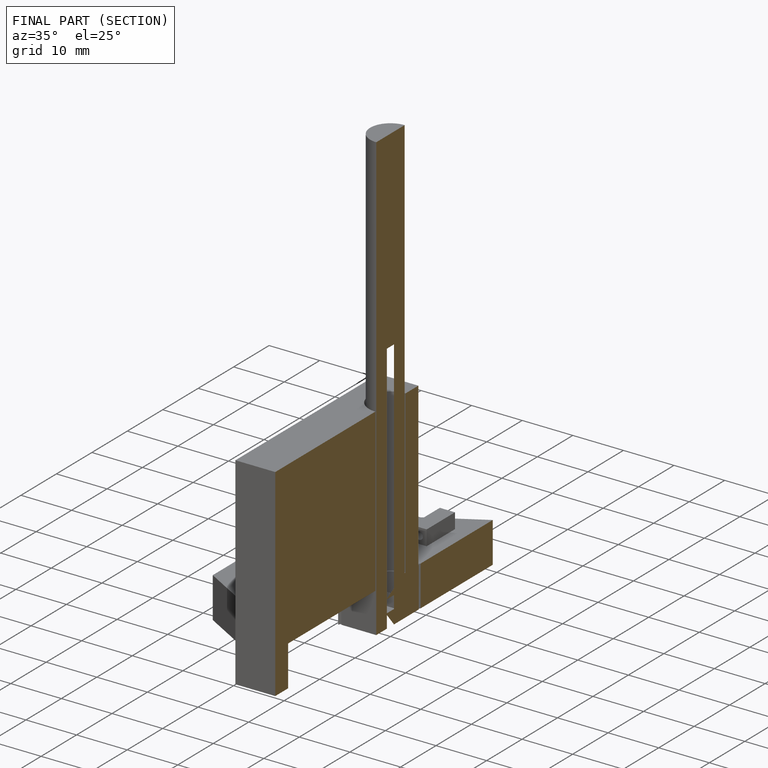
[diagram: finished part — half-section view (interior)]
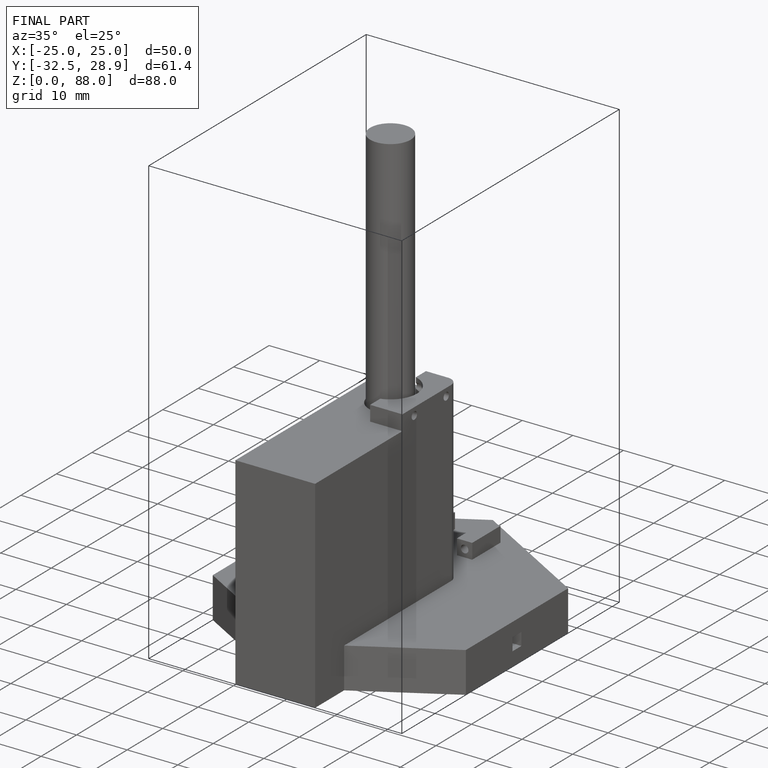
[diagram: finished part — iso view with bounding-box wireframe]
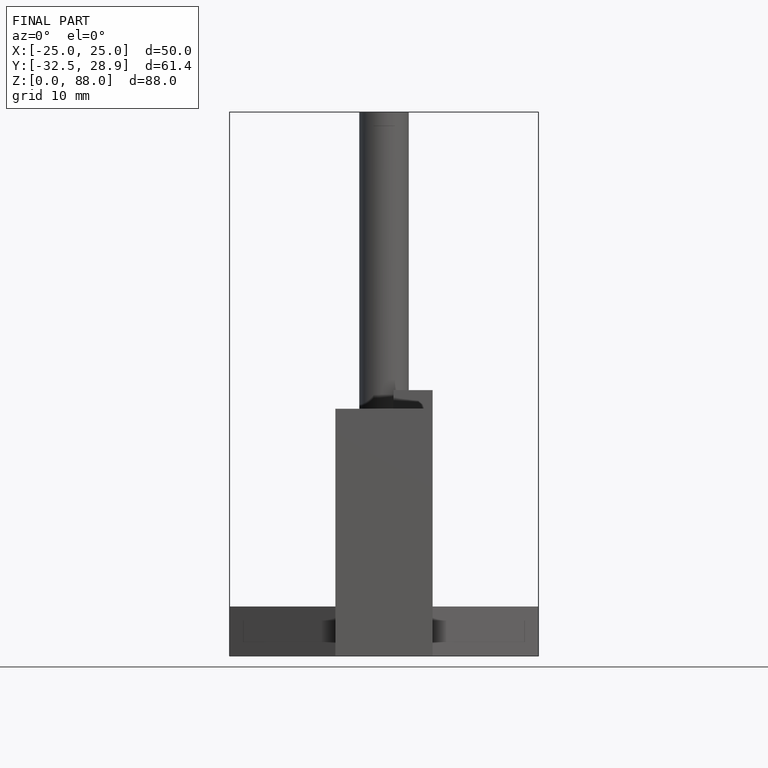
[diagram: finished part — front view with bounding-box wireframe]
